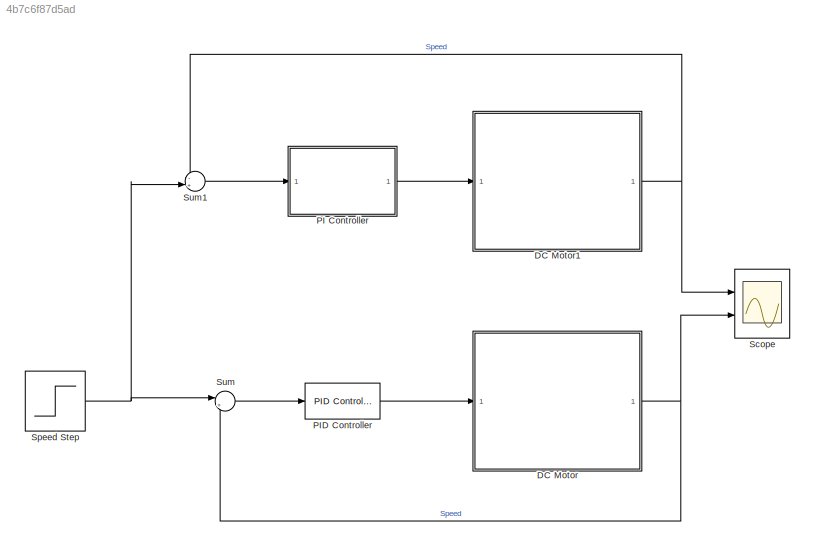
MODEL slx_4b7c6f87d5ad
KIND model
CONFIG AbsTol = auto
CONFIG FixedStep = auto
CONFIG MaxStep = auto
CONFIG MinStep = auto
CONFIG RelTol = 1e-3
CONFIG SampleTimeConstraint = Unconstrained
CONFIG Solver = VariableStepAuto
CONFIG SolverMode = Auto
CONFIG SolverName = VariableStepAuto
CONFIG StartTime = 0.0
CONFIG StopTime = 10.0
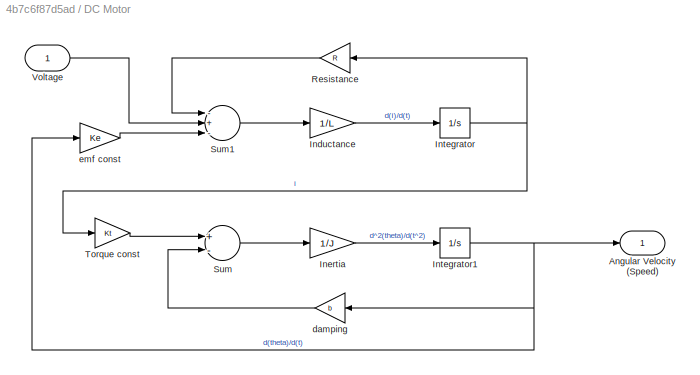
BLOCK [SubSystem] DC Motor
  Ports = [1, 1]
  RequestExecContextInheritance = off
  Variant = off
BLOCK [Outport] DC Motor/Angular Velocity (Speed)
  IconDisplay = Port number
BLOCK [Gain] DC Motor/Inductance
  Gain = 1/L
  OutDataTypeStr = Inherit: Inherit via internal rule
  ParamDataTypeStr = Inherit: Inherit via internal rule
  SaturateOnIntegerOverflow = off
BLOCK [Gain] DC Motor/Inertia
  Gain = 1/J
  OutDataTypeStr = Inherit: Inherit via internal rule
  ParamDataTypeStr = Inherit: Inherit via internal rule
  SaturateOnIntegerOverflow = off
BLOCK [Integrator] DC Motor/Integrator
  Ports = [1, 1]
BLOCK [Integrator] DC Motor/Integrator1
  Ports = [1, 1]
BLOCK [Gain] DC Motor/Resistance
  Gain = R
  OutDataTypeStr = Inherit: Inherit via internal rule
  ParamDataTypeStr = Inherit: Inherit via internal rule
  SaturateOnIntegerOverflow = off
BLOCK [Sum] DC Motor/Sum
  InputSameDT = off
  Inputs = +-
  OutDataTypeStr = Inherit: Inherit via internal rule
  Ports = [2, 1]
  SaturateOnIntegerOverflow = off
BLOCK [Sum] DC Motor/Sum1
  InputSameDT = off
  Inputs = -+-
  OutDataTypeStr = Inherit: Inherit via internal rule
  Ports = [3, 1]
  SaturateOnIntegerOverflow = off
BLOCK [Gain] DC Motor/Torque const
  Gain = Kt
  OutDataTypeStr = Inherit: Inherit via internal rule
  ParamDataTypeStr = Inherit: Inherit via internal rule
  SaturateOnIntegerOverflow = off
BLOCK [Inport] DC Motor/Voltage
  IconDisplay = Port number
BLOCK [Gain] DC Motor/damping
  Gain = b
  OutDataTypeStr = Inherit: Inherit via internal rule
  ParamDataTypeStr = Inherit: Inherit via internal rule
  SaturateOnIntegerOverflow = off
BLOCK [Gain] DC Motor/emf const
  Gain = Ke
  OutDataTypeStr = Inherit: Inherit via internal rule
  ParamDataTypeStr = Inherit: Inherit via internal rule
  SaturateOnIntegerOverflow = off
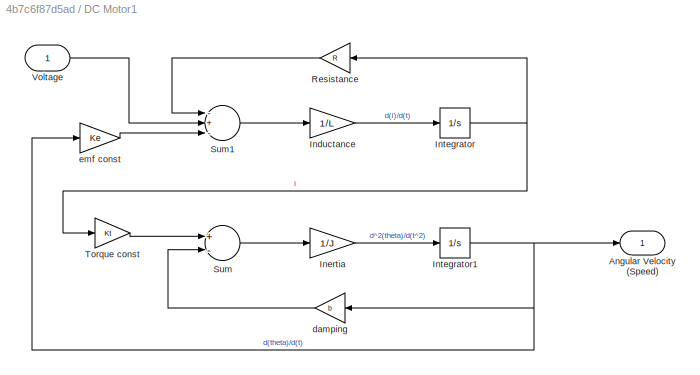
BLOCK [SubSystem] DC Motor1
  Ports = [1, 1]
  RequestExecContextInheritance = off
  Variant = off
BLOCK [Outport] DC Motor1/Angular Velocity (Speed)
  IconDisplay = Port number
BLOCK [Gain] DC Motor1/Inductance
  Gain = 1/L
  OutDataTypeStr = Inherit: Inherit via internal rule
  ParamDataTypeStr = Inherit: Inherit via internal rule
  SaturateOnIntegerOverflow = off
BLOCK [Gain] DC Motor1/Inertia
  Gain = 1/J
  OutDataTypeStr = Inherit: Inherit via internal rule
  ParamDataTypeStr = Inherit: Inherit via internal rule
  SaturateOnIntegerOverflow = off
BLOCK [Integrator] DC Motor1/Integrator
  Ports = [1, 1]
BLOCK [Integrator] DC Motor1/Integrator1
  Ports = [1, 1]
BLOCK [Gain] DC Motor1/Resistance
  Gain = R
  OutDataTypeStr = Inherit: Inherit via internal rule
  ParamDataTypeStr = Inherit: Inherit via internal rule
  SaturateOnIntegerOverflow = off
BLOCK [Sum] DC Motor1/Sum
  InputSameDT = off
  Inputs = +-
  OutDataTypeStr = Inherit: Inherit via internal rule
  Ports = [2, 1]
  SaturateOnIntegerOverflow = off
BLOCK [Sum] DC Motor1/Sum1
  InputSameDT = off
  Inputs = -+-
  OutDataTypeStr = Inherit: Inherit via internal rule
  Ports = [3, 1]
  SaturateOnIntegerOverflow = off
BLOCK [Gain] DC Motor1/Torque const
  Gain = Kt
  OutDataTypeStr = Inherit: Inherit via internal rule
  ParamDataTypeStr = Inherit: Inherit via internal rule
  SaturateOnIntegerOverflow = off
BLOCK [Inport] DC Motor1/Voltage
  IconDisplay = Port number
BLOCK [Gain] DC Motor1/damping
  Gain = b
  OutDataTypeStr = Inherit: Inherit via internal rule
  ParamDataTypeStr = Inherit: Inherit via internal rule
  SaturateOnIntegerOverflow = off
BLOCK [Gain] DC Motor1/emf const
  Gain = Ke
  OutDataTypeStr = Inherit: Inherit via internal rule
  ParamDataTypeStr = Inherit: Inherit via internal rule
  SaturateOnIntegerOverflow = off
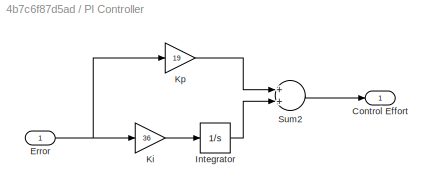
BLOCK [SubSystem] PI Controller
  Ports = [1, 1]
  RequestExecContextInheritance = off
  Variant = off
BLOCK [Outport] PI Controller/Control Effort
  IconDisplay = Port number
BLOCK [Inport] PI Controller/Error
  IconDisplay = Port number
BLOCK [Integrator] PI Controller/Integrator
  Ports = [1, 1]
BLOCK [Gain] PI Controller/Ki
  Gain = 36
  OutDataTypeStr = Inherit: Inherit via internal rule
  ParamDataTypeStr = Inherit: Inherit via internal rule
  SaturateOnIntegerOverflow = off
BLOCK [Gain] PI Controller/Kp
  Gain = 19
  OutDataTypeStr = Inherit: Inherit via internal rule
  ParamDataTypeStr = Inherit: Inherit via internal rule
  SaturateOnIntegerOverflow = off
BLOCK [Sum] PI Controller/Sum2
  InputSameDT = off
  OutDataTypeStr = Inherit: Inherit via internal rule
  Ports = [2, 1]
  SaturateOnIntegerOverflow = off
BLOCK [Reference] PID Controller  REF=simulink/Continuous/PID Controller
  Ports = [1, 1]
  SourceBlock = simulink/Continuous/PID Controller
  SourceType = PID 1dof
BLOCK [Scope] Scope
  NumInputPorts = 2
  Ports = [2]
  ScopeSpecificationString = Simulink.scopes.TimeScopeBlockCfg('CurrentConfiguration', extmgr.ConfigurationSet(extmgr.Configuration('Core','General UI',true),extmgr.Configuration('Core','Source UI',true),extmgr.Configuration('Sources','WiredSimulink',true,'DataLoggingLimitDataPoints',true,'DataLoggingSaveFormat','Array','DataLoggingDecimation','1','DataLoggingDecimateData',true),extmgr.Configuration('Visuals','Time Domain',tr...<+2140ch>
BLOCK [Step] Speed Step
  SampleTime = 0
  Time = 0
BLOCK [Sum] Sum
  IconShape = round
  InputSameDT = off
  Inputs = |+-
  OutDataTypeStr = Inherit: Inherit via internal rule
  Ports = [2, 1]
  SaturateOnIntegerOverflow = off
BLOCK [Sum] Sum1
  IconShape = round
  InputSameDT = off
  Inputs = -+|
  OutDataTypeStr = Inherit: Inherit via internal rule
  Ports = [2, 1]
  SaturateOnIntegerOverflow = off
LINE DC Motor/Inductance:1 -> DC Motor/Integrator:1
LINE DC Motor/Inertia:1 -> DC Motor/Integrator1:1
NET DC Motor/Integrator1:1 -> DC Motor/Angular Velocity (Speed):1, DC Motor/damping:1, DC Motor/emf const:1
NET DC Motor/Integrator:1 -> DC Motor/Resistance:1, DC Motor/Torque const:1
LINE DC Motor/Resistance:1 -> DC Motor/Sum1:1
LINE DC Motor/Sum1:1 -> DC Motor/Inductance:1
LINE DC Motor/Sum:1 -> DC Motor/Inertia:1
LINE DC Motor/Torque const:1 -> DC Motor/Sum:1
LINE DC Motor/Voltage:1 -> DC Motor/Sum1:2
LINE DC Motor/damping:1 -> DC Motor/Sum:2
LINE DC Motor/emf const:1 -> DC Motor/Sum1:3
LINE DC Motor1/Inductance:1 -> DC Motor1/Integrator:1
LINE DC Motor1/Inertia:1 -> DC Motor1/Integrator1:1
NET DC Motor1/Integrator1:1 -> DC Motor1/Angular Velocity (Speed):1, DC Motor1/damping:1, DC Motor1/emf const:1
NET DC Motor1/Integrator:1 -> DC Motor1/Resistance:1, DC Motor1/Torque const:1
LINE DC Motor1/Resistance:1 -> DC Motor1/Sum1:1
LINE DC Motor1/Sum1:1 -> DC Motor1/Inductance:1
LINE DC Motor1/Sum:1 -> DC Motor1/Inertia:1
LINE DC Motor1/Torque const:1 -> DC Motor1/Sum:1
LINE DC Motor1/Voltage:1 -> DC Motor1/Sum1:2
LINE DC Motor1/damping:1 -> DC Motor1/Sum:2
LINE DC Motor1/emf const:1 -> DC Motor1/Sum1:3
NET DC Motor1:1 -> Scope:1, Sum1:1
NET DC Motor:1 -> Scope:2, Sum:2
NET PI Controller/Error:1 -> PI Controller/Ki:1, PI Controller/Kp:1
LINE PI Controller/Integrator:1 -> PI Controller/Sum2:2
LINE PI Controller/Ki:1 -> PI Controller/Integrator:1
LINE PI Controller/Kp:1 -> PI Controller/Sum2:1
LINE PI Controller/Sum2:1 -> PI Controller/Control Effort:1
LINE PI Controller:1 -> DC Motor1:1
LINE PID Controller:1 -> DC Motor:1
NET Speed Step:1 -> Sum1:2, Sum:1
LINE Sum1:1 -> PI Controller:1
LINE Sum:1 -> PID Controller:1
note: NET lines group one-source signal fan-out (src -> all destinations, sorted); 1:1 wires keep LINE
